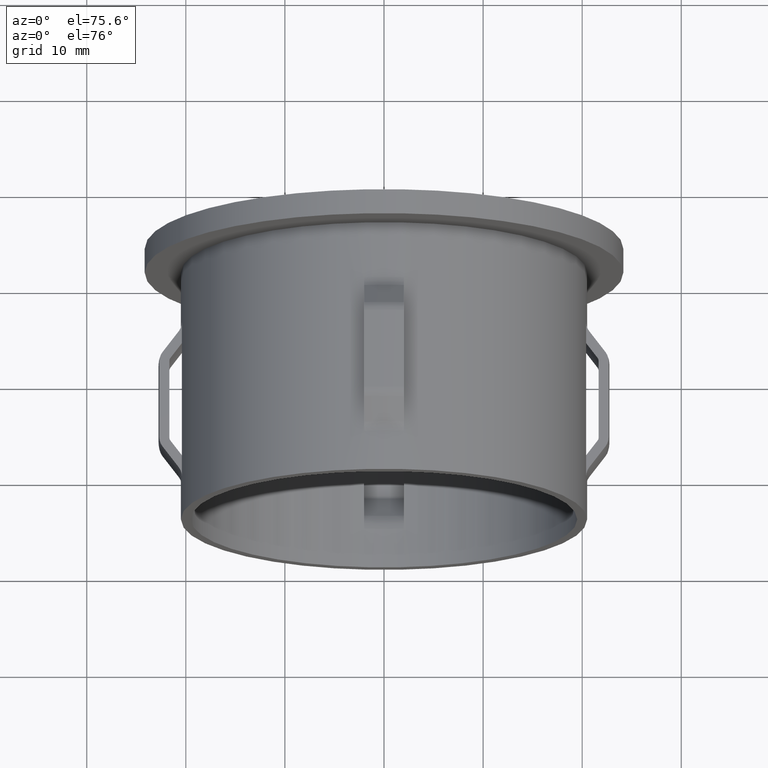
[diagram: clean part render]
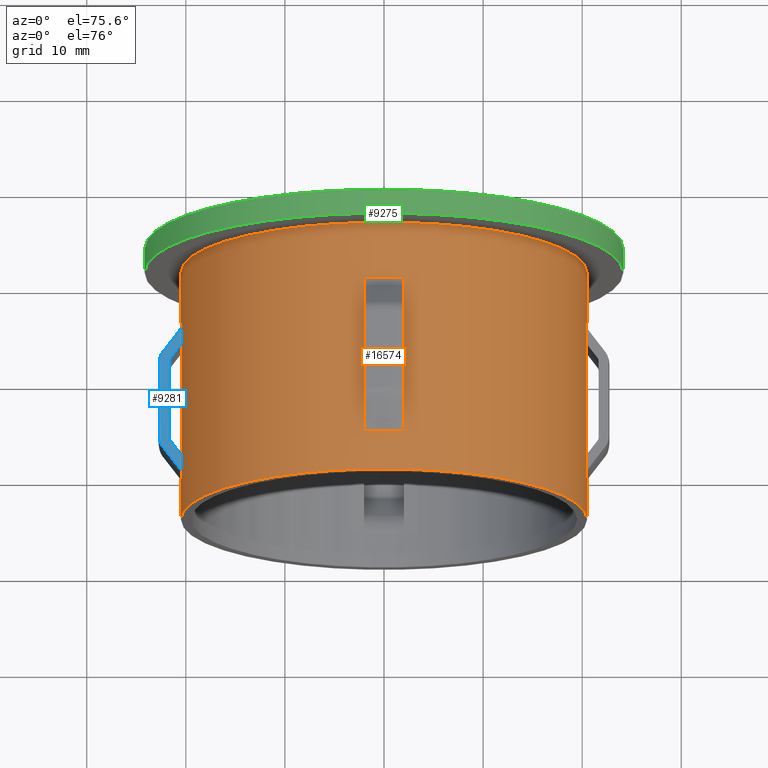
[diagram: same view with three faces highlighted in distinct colors, each labeled with its STEP entity id]
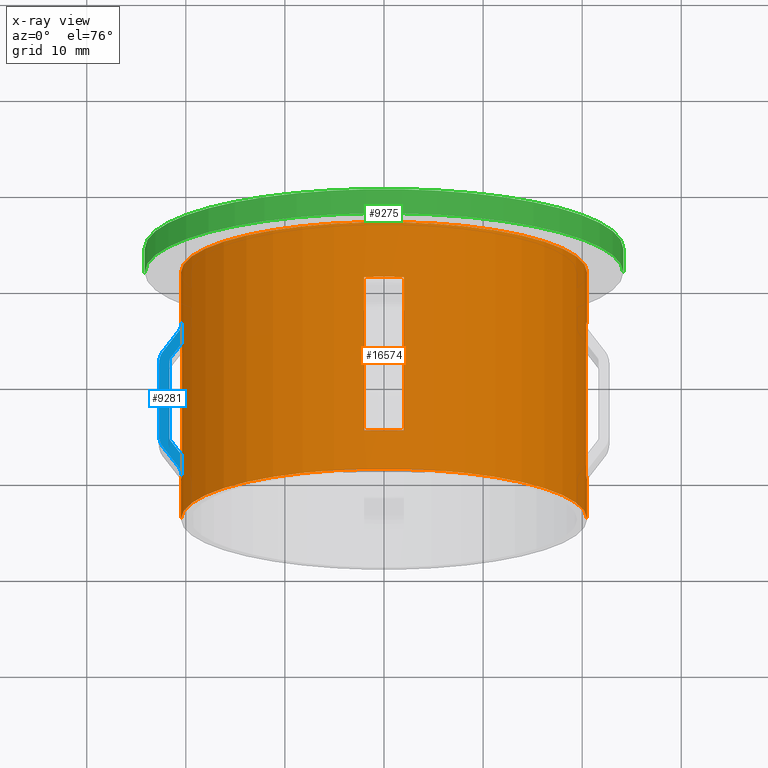
[diagram: x-ray of the same camera — body ghosted, the three highlighted faces saturated]
A machine part, auxiliary view with three faces highlighted in distinct colors.
The next image is the same camera in x-ray (body ghosted, the three faces saturated) — at least one of them is partly hidden behind the body in this view.
Their STEP definitions:

[orange] entity #16574 — the highlighted cylindrical surface (partial cylindrical patch) has radius 20.5 mm, axis along (-0, 1, -0).
#146 = DIRECTION ( 'NONE',  ( -0.0000000000000000000, -1.000000000000000000, -0.0000000000000000000 ) ) ;
#223 = DIRECTION ( 'NONE',  ( -1.714505518806297100E-016, 1.000000000000000000, -0.0000000000000000000 ) ) ;
#460 = VERTEX_POINT ( 'NONE', #12580 ) ;
#514 = VERTEX_POINT ( 'NONE', #8737 ) ;
#531 = VERTEX_POINT ( 'NONE', #11409 ) ;
#661 = CARTESIAN_POINT ( 'NONE',  ( 20.40220576310317200, 3.999999999999989800, 2.000000000000000000 ) ) ;
#669 = LINE ( 'NONE', #8160, #2994 ) ;
#673 = EDGE_CURVE ( 'NONE', #1411, #10798, #3997, .T. ) ;
#711 = ORIENTED_EDGE ( 'NONE', *, *, #13304, .F. ) ;
#755 = EDGE_CURVE ( 'NONE', #460, #5099, #16939, .T. ) ;
#776 = CARTESIAN_POINT ( 'NONE',  ( 4.589976203204287100E-015, -3.469446951953614200E-015, 0.0000000000000000000 ) ) ;
#844 = DIRECTION ( 'NONE',  ( -1.000000000000000000, -1.692413147294446000E-016, 0.0000000000000000000 ) ) ;
#855 = DIRECTION ( 'NONE',  ( -1.714505518806297100E-016, 1.000000000000000000, -0.0000000000000000000 ) ) ;
#1033 = ORIENTED_EDGE ( 'NONE', *, *, #2920, .F. ) ;
#1125 = ORIENTED_EDGE ( 'NONE', *, *, #5379, .T. ) ;
#1150 = EDGE_CURVE ( 'NONE', #531, #5264, #2097, .T. ) ;
#1158 = ORIENTED_EDGE ( 'NONE', *, *, #11167, .T. ) ;
#1393 = CARTESIAN_POINT ( 'NONE',  ( 2.000000000000004900, 51.72464896776082800, 20.40220576310316900 ) ) ;
#1411 = VERTEX_POINT ( 'NONE', #9732 ) ;
#1485 = EDGE_CURVE ( 'NONE', #15719, #4306, #17335, .T. ) ;
#1512 = VECTOR ( 'NONE', #2829, 1000.000000000000000 ) ;
#1540 = VECTOR ( 'NONE', #15731, 1000.000000000000000 ) ;
#1913 = VERTEX_POINT ( 'NONE', #5503 ) ;
#1917 = ORIENTED_EDGE ( 'NONE', *, *, #7832, .F. ) ;
#2070 = CARTESIAN_POINT ( 'NONE',  ( 3.904173995681768100E-015, 3.999999999999996400, 0.0000000000000000000 ) ) ;
#2097 = LINE ( 'NONE', #15490, #10245 ) ;
#2134 = AXIS2_PLACEMENT_3D ( 'NONE', #2070, #4706, #7378 ) ;
#2150 = ORIENTED_EDGE ( 'NONE', *, *, #11316, .F. ) ;
#2278 = CIRCLE ( 'NONE', #8524, 20.50000000000000000 ) ;
#2418 = FACE_BOUND ( 'NONE', #2493, .T. ) ;
#2493 = EDGE_LOOP ( 'NONE', ( #10840, #13848, #1917, #711, #3559, #11485, #1125, #5761 ) ) ;
#2568 = LINE ( 'NONE', #4601, #5693 ) ;
#2607 = CIRCLE ( 'NONE', #8800, 20.50000000000000700 ) ;
#2673 = ORIENTED_EDGE ( 'NONE', *, *, #3501, .T. ) ;
#2803 = DIRECTION ( 'NONE',  ( -1.000000000000000000, -1.692413147294446000E-016, 0.0000000000000000000 ) ) ;
#2811 = CARTESIAN_POINT ( 'NONE',  ( -20.40220576310316500, 20.00000000000000000, 2.000000000000000000 ) ) ;
#2829 = DIRECTION ( 'NONE',  ( 0.0000000000000000000, -1.000000000000000000, 0.0000000000000000000 ) ) ;
#2920 = EDGE_CURVE ( 'NONE', #12529, #15719, #2924, .T. ) ;
#2924 = LINE ( 'NONE', #15937, #13145 ) ;
#2981 = CARTESIAN_POINT ( 'NONE',  ( -20.40220576310316500, 3.999999999999989800, 2.000000000000000000 ) ) ;
#2994 = VECTOR ( 'NONE', #146, 1000.000000000000000 ) ;
#3033 = ORIENTED_EDGE ( 'NONE', *, *, #11952, .F. ) ;
#3077 = DIRECTION ( 'NONE',  ( -1.714505518806297100E-016, 1.000000000000000000, -0.0000000000000000000 ) ) ;
#3208 = CARTESIAN_POINT ( 'NONE',  ( 20.50000000000001400, 4.000000000000000000, 2.510525938252075700E-015 ) ) ;
#3361 = CARTESIAN_POINT ( 'NONE',  ( -20.49999999999999600, 25.69999999999999200, 0.0000000000000000000 ) ) ;
#3444 = DIRECTION ( 'NONE',  ( -1.000000000000000000, -1.692413147294446200E-016, 0.0000000000000000000 ) ) ;
#3501 = EDGE_CURVE ( 'NONE', #12529, #10206, #2278, .T. ) ;
#3502 = DIRECTION ( 'NONE',  ( -1.714505518806297100E-016, 1.000000000000000000, -0.0000000000000000000 ) ) ;
#3559 = ORIENTED_EDGE ( 'NONE', *, *, #11973, .F. ) ;
#3632 = DIRECTION ( 'NONE',  ( -1.714505518806297100E-016, 1.000000000000000000, -0.0000000000000000000 ) ) ;
#3960 = CARTESIAN_POINT ( 'NONE',  ( 20.40220576310316900, 19.99999999999999600, 2.000000000000000400 ) ) ;
#3997 = LINE ( 'NONE', #16430, #13813 ) ;
#4078 = CARTESIAN_POINT ( 'NONE',  ( 2.000000000000004900, 20.00000000000000000, 20.40220576310316900 ) ) ;
#4174 = DIRECTION ( 'NONE',  ( -1.000000000000000000, -1.692413147294445500E-016, 0.0000000000000000000 ) ) ;
#4245 = EDGE_CURVE ( 'NONE', #5099, #1913, #10607, .T. ) ;
#4256 = CARTESIAN_POINT ( 'NONE',  ( 20.50000000000000400, 4.528936159929513800E-017, 2.510525938252074500E-015 ) ) ;
#4306 = VERTEX_POINT ( 'NONE', #2981 ) ;
#4433 = ORIENTED_EDGE ( 'NONE', *, *, #11275, .T. ) ;
#4461 = AXIS2_PLACEMENT_3D ( 'NONE', #5424, #14764, #2803 ) ;
#4543 = DIRECTION ( 'NONE',  ( -0.0000000000000000000, -1.000000000000000000, -0.0000000000000000000 ) ) ;
#4601 = CARTESIAN_POINT ( 'NONE',  ( -20.50000000000000400, 28.19999999999999600, 0.0000000000000000000 ) ) ;
#4706 = DIRECTION ( 'NONE',  ( -1.714505518806297100E-016, 1.000000000000000000, -0.0000000000000000000 ) ) ;
#4733 = VECTOR ( 'NONE', #16099, 1000.000000000000000 ) ;
#4957 = ORIENTED_EDGE ( 'NONE', *, *, #1485, .F. ) ;
#5099 = VERTEX_POINT ( 'NONE', #12471 ) ;
#5193 = VECTOR ( 'NONE', #10621, 1000.000000000000000 ) ;
#5264 = VERTEX_POINT ( 'NONE', #661 ) ;
#5379 = EDGE_CURVE ( 'NONE', #11331, #7179, #16224, .T. ) ;
#5405 = EDGE_LOOP ( 'NONE', ( #2673, #17163, #15188, #11676, #3033, #7712, #4433, #6901, #6967, #2150, #9232, #14720, #1158, #6989, #4957, #1033 ) ) ;
#5424 = CARTESIAN_POINT ( 'NONE',  ( 1.160965165591693700E-015, 19.99999999999999300, 0.0000000000000000000 ) ) ;
#5503 = CARTESIAN_POINT ( 'NONE',  ( -20.40220576310316500, 17.83333333333333600, 2.000000000000000000 ) ) ;
#5569 = LINE ( 'NONE', #9154, #10981 ) ;
#5693 = VECTOR ( 'NONE', #8445, 1000.000000000000000 ) ;
#5761 = ORIENTED_EDGE ( 'NONE', *, *, #16009, .T. ) ;
#5889 = CARTESIAN_POINT ( 'NONE',  ( 20.40220576310317200, 17.83333333333333900, 2.000000000000000000 ) ) ;
#5942 = VECTOR ( 'NONE', #10613, 1000.000000000000000 ) ;
#5988 = CARTESIAN_POINT ( 'NONE',  ( 3.904173995681768100E-015, 3.999999999999996400, 0.0000000000000000000 ) ) ;
#6247 = DIRECTION ( 'NONE',  ( -1.714505518806297100E-016, 1.000000000000000000, -0.0000000000000000000 ) ) ;
#6384 = CARTESIAN_POINT ( 'NONE',  ( -20.40220576310316500, 20.00000000000000000, 2.000000000000000000 ) ) ;
#6728 = LINE ( 'NONE', #11937, #10092 ) ;
#6752 = CARTESIAN_POINT ( 'NONE',  ( 2.000000000000004900, 20.00000000000000000, 20.40220576310316900 ) ) ;
#6901 = ORIENTED_EDGE ( 'NONE', *, *, #673, .T. ) ;
#6934 = AXIS2_PLACEMENT_3D ( 'NONE', #7597, #9114, #17051 ) ;
#6967 = ORIENTED_EDGE ( 'NONE', *, *, #15082, .F. ) ;
#6989 = ORIENTED_EDGE ( 'NONE', *, *, #9626, .T. ) ;
#6996 = CYLINDRICAL_SURFACE ( 'NONE', #9784, 20.50000000000000400 ) ;
#7043 = CARTESIAN_POINT ( 'NONE',  ( -1.999999999999996700, 19.99999999999999300, 20.40220576310316900 ) ) ;
#7179 = VERTEX_POINT ( 'NONE', #14443 ) ;
#7203 = VERTEX_POINT ( 'NONE', #16010 ) ;
#7229 = VERTEX_POINT ( 'NONE', #17345 ) ;
#7348 = LINE ( 'NONE', #12136, #1512 ) ;
#7378 = DIRECTION ( 'NONE',  ( -1.000000000000000000, -1.692413147294445500E-016, 0.0000000000000000000 ) ) ;
#7521 = DIRECTION ( 'NONE',  ( -1.000000000000000000, -1.692413147294445500E-016, 0.0000000000000000000 ) ) ;
#7597 = CARTESIAN_POINT ( 'NONE',  ( 1.160965165591693700E-015, 19.99999999999999300, 0.0000000000000000000 ) ) ;
#7680 = VERTEX_POINT ( 'NONE', #3208 ) ;
#7712 = ORIENTED_EDGE ( 'NONE', *, *, #11197, .F. ) ;
#7773 = VECTOR ( 'NONE', #16108, 1000.000000000000000 ) ;
#7832 = EDGE_CURVE ( 'NONE', #7203, #14005, #15175, .T. ) ;
#7971 = VECTOR ( 'NONE', #17343, 1000.000000000000000 ) ;
#8160 = CARTESIAN_POINT ( 'NONE',  ( 20.40220576310317200, 20.00000000000000000, 2.000000000000000000 ) ) ;
#8445 = DIRECTION ( 'NONE',  ( -1.714505518806297100E-016, 1.000000000000000000, -0.0000000000000000000 ) ) ;
#8524 = AXIS2_PLACEMENT_3D ( 'NONE', #776, #10077, #15499 ) ;
#8598 = DIRECTION ( 'NONE',  ( -0.0000000000000000000, -1.000000000000000000, -0.0000000000000000000 ) ) ;
#8671 = LINE ( 'NONE', #6752, #5942 ) ;
#8737 = CARTESIAN_POINT ( 'NONE',  ( 2.000000000000004900, 17.83333333333333600, 20.40220576310316900 ) ) ;
#8800 = AXIS2_PLACEMENT_3D ( 'NONE', #5988, #855, #7521 ) ;
#9062 = LINE ( 'NONE', #6384, #1540 ) ;
#9084 = VERTEX_POINT ( 'NONE', #12419 ) ;
#9114 = DIRECTION ( 'NONE',  ( -1.714505518806297100E-016, 1.000000000000000000, -0.0000000000000000000 ) ) ;
#9154 = CARTESIAN_POINT ( 'NONE',  ( -1.999999999999996200, 20.00000000000000000, 20.40220576310316500 ) ) ;
#9180 = EDGE_CURVE ( 'NONE', #5264, #7680, #2607, .T. ) ;
#9225 = DIRECTION ( 'NONE',  ( -1.000000000000000000, -1.692413147294445700E-016, 0.0000000000000000000 ) ) ;
#9232 = ORIENTED_EDGE ( 'NONE', *, *, #755, .T. ) ;
#9351 = DIRECTION ( 'NONE',  ( -1.714505518806297100E-016, 1.000000000000000000, -0.0000000000000000000 ) ) ;
#9479 = VERTEX_POINT ( 'NONE', #12159 ) ;
#9626 = EDGE_CURVE ( 'NONE', #9084, #4306, #9062, .T. ) ;
#9732 = CARTESIAN_POINT ( 'NONE',  ( 20.50000000000000000, 19.99999999999999600, 2.510525938252074500E-015 ) ) ;
#9771 = LINE ( 'NONE', #12467, #16871 ) ;
#9784 = AXIS2_PLACEMENT_3D ( 'NONE', #15537, #6247, #9225 ) ;
#10077 = DIRECTION ( 'NONE',  ( -1.714505518806297100E-016, 1.000000000000000000, -0.0000000000000000000 ) ) ;
#10092 = VECTOR ( 'NONE', #13178, 1000.000000000000000 ) ;
#10157 = LINE ( 'NONE', #4078, #4733 ) ;
#10206 = VERTEX_POINT ( 'NONE', #4256 ) ;
#10245 = VECTOR ( 'NONE', #8598, 1000.000000000000000 ) ;
#10292 = CIRCLE ( 'NONE', #4461, 20.50000000000000000 ) ;
#10607 = LINE ( 'NONE', #2811, #5193 ) ;
#10613 = DIRECTION ( 'NONE',  ( -0.0000000000000000000, -1.000000000000000000, -0.0000000000000000000 ) ) ;
#10621 = DIRECTION ( 'NONE',  ( -0.0000000000000000000, -1.000000000000000000, -0.0000000000000000000 ) ) ;
#10635 = CARTESIAN_POINT ( 'NONE',  ( -1.999999999999996200, 51.72464896776082800, 20.40220576310316500 ) ) ;
#10798 = VERTEX_POINT ( 'NONE', #16472 ) ;
#10840 = ORIENTED_EDGE ( 'NONE', *, *, #12361, .T. ) ;
#10971 = CARTESIAN_POINT ( 'NONE',  ( 3.904173995681768100E-015, 3.999999999999996400, 0.0000000000000000000 ) ) ;
#10981 = VECTOR ( 'NONE', #11006, 1000.000000000000000 ) ;
#11006 = DIRECTION ( 'NONE',  ( -0.0000000000000000000, -1.000000000000000000, -0.0000000000000000000 ) ) ;
#11167 = EDGE_CURVE ( 'NONE', #1913, #9084, #6728, .T. ) ;
#11197 = EDGE_CURVE ( 'NONE', #17235, #13885, #669, .T. ) ;
#11275 = EDGE_CURVE ( 'NONE', #17235, #1411, #10292, .T. ) ;
#11316 = EDGE_CURVE ( 'NONE', #460, #12557, #2568, .T. ) ;
#11331 = VERTEX_POINT ( 'NONE', #7043 ) ;
#11409 = CARTESIAN_POINT ( 'NONE',  ( 20.40220576310317200, 6.166666666666667900, 2.000000000000000000 ) ) ;
#11485 = ORIENTED_EDGE ( 'NONE', *, *, #13409, .F. ) ;
#11514 = LINE ( 'NONE', #10635, #7971 ) ;
#11619 = CIRCLE ( 'NONE', #16907, 20.49999999999999600 ) ;
#11676 = ORIENTED_EDGE ( 'NONE', *, *, #1150, .F. ) ;
#11937 = CARTESIAN_POINT ( 'NONE',  ( -20.40220576310316500, 51.72464896776082800, 2.000000000000000000 ) ) ;
#11952 = EDGE_CURVE ( 'NONE', #13885, #531, #7348, .T. ) ;
#11973 = EDGE_CURVE ( 'NONE', #7229, #14617, #11514, .T. ) ;
#11994 = FACE_OUTER_BOUND ( 'NONE', #5405, .T. ) ;
#12049 = VECTOR ( 'NONE', #12211, 1000.000000000000000 ) ;
#12136 = CARTESIAN_POINT ( 'NONE',  ( 20.40220576310317200, 51.72464896776082800, 2.000000000000000000 ) ) ;
#12159 = CARTESIAN_POINT ( 'NONE',  ( 2.000000000000004900, 6.166666666666667900, 20.40220576310316900 ) ) ;
#12211 = DIRECTION ( 'NONE',  ( -1.714505518806297100E-016, 1.000000000000000000, -0.0000000000000000000 ) ) ;
#12361 = EDGE_CURVE ( 'NONE', #514, #9479, #14886, .T. ) ;
#12419 = CARTESIAN_POINT ( 'NONE',  ( -20.40220576310316500, 6.166666666666661600, 2.000000000000000000 ) ) ;
#12467 = CARTESIAN_POINT ( 'NONE',  ( -1.999999999999996200, 20.00000000000000000, 20.40220576310316500 ) ) ;
#12471 = CARTESIAN_POINT ( 'NONE',  ( -20.40220576310316500, 20.00000000000000000, 2.000000000000000000 ) ) ;
#12504 = CARTESIAN_POINT ( 'NONE',  ( -20.49999999999999600, -6.984183265506524500E-015, 0.0000000000000000000 ) ) ;
#12529 = VERTEX_POINT ( 'NONE', #12504 ) ;
#12557 = VERTEX_POINT ( 'NONE', #3361 ) ;
#12580 = CARTESIAN_POINT ( 'NONE',  ( -20.50000000000000000, 19.99999999999998900, 0.0000000000000000000 ) ) ;
#12805 = AXIS2_PLACEMENT_3D ( 'NONE', #10971, #223, #4174 ) ;
#12910 = CARTESIAN_POINT ( 'NONE',  ( 2.000000000000004900, 3.999999999999989800, 20.40220576310316900 ) ) ;
#13145 = VECTOR ( 'NONE', #9351, 1000.000000000000000 ) ;
#13178 = DIRECTION ( 'NONE',  ( 0.0000000000000000000, -1.000000000000000000, 0.0000000000000000000 ) ) ;
#13304 = EDGE_CURVE ( 'NONE', #14617, #7203, #5569, .T. ) ;
#13409 = EDGE_CURVE ( 'NONE', #11331, #7229, #9771, .T. ) ;
#13637 = CARTESIAN_POINT ( 'NONE',  ( -1.999999999999996200, 6.166666666666660700, 20.40220576310316500 ) ) ;
#13813 = VECTOR ( 'NONE', #3077, 1000.000000000000000 ) ;
#13828 = EDGE_CURVE ( 'NONE', #10206, #7680, #15616, .T. ) ;
#13848 = ORIENTED_EDGE ( 'NONE', *, *, #16867, .T. ) ;
#13885 = VERTEX_POINT ( 'NONE', #5889 ) ;
#14005 = VERTEX_POINT ( 'NONE', #12910 ) ;
#14181 = CARTESIAN_POINT ( 'NONE',  ( 1.160965165591693700E-015, 19.99999999999999300, 0.0000000000000000000 ) ) ;
#14443 = CARTESIAN_POINT ( 'NONE',  ( 2.000000000000004900, 20.00000000000000000, 20.40220576310316900 ) ) ;
#14617 = VERTEX_POINT ( 'NONE', #13637 ) ;
#14720 = ORIENTED_EDGE ( 'NONE', *, *, #4245, .T. ) ;
#14764 = DIRECTION ( 'NONE',  ( -1.714505518806297100E-016, 1.000000000000000000, -0.0000000000000000000 ) ) ;
#14860 = CARTESIAN_POINT ( 'NONE',  ( 20.50000000000000400, 28.20000000000000300, 2.510525938252074500E-015 ) ) ;
#14886 = LINE ( 'NONE', #1393, #7773 ) ;
#15082 = EDGE_CURVE ( 'NONE', #12557, #10798, #11619, .T. ) ;
#15175 = CIRCLE ( 'NONE', #12805, 20.50000000000000700 ) ;
#15188 = ORIENTED_EDGE ( 'NONE', *, *, #9180, .F. ) ;
#15490 = CARTESIAN_POINT ( 'NONE',  ( 20.40220576310317200, 20.00000000000000000, 2.000000000000000000 ) ) ;
#15499 = DIRECTION ( 'NONE',  ( -1.000000000000000000, -1.714505518806297600E-016, 0.0000000000000000000 ) ) ;
#15537 = CARTESIAN_POINT ( 'NONE',  ( -2.449293598294708900E-016, 28.19999999999999900, 0.0000000000000000000 ) ) ;
#15616 = LINE ( 'NONE', #14860, #12049 ) ;
#15719 = VERTEX_POINT ( 'NONE', #16516 ) ;
#15731 = DIRECTION ( 'NONE',  ( -0.0000000000000000000, -1.000000000000000000, -0.0000000000000000000 ) ) ;
#15937 = CARTESIAN_POINT ( 'NONE',  ( -20.50000000000000400, 28.19999999999999600, 0.0000000000000000000 ) ) ;
#16009 = EDGE_CURVE ( 'NONE', #7179, #514, #10157, .T. ) ;
#16010 = CARTESIAN_POINT ( 'NONE',  ( -1.999999999999996200, 3.999999999999989800, 20.40220576310316500 ) ) ;
#16099 = DIRECTION ( 'NONE',  ( -0.0000000000000000000, -1.000000000000000000, -0.0000000000000000000 ) ) ;
#16108 = DIRECTION ( 'NONE',  ( 0.0000000000000000000, -1.000000000000000000, 0.0000000000000000000 ) ) ;
#16224 = CIRCLE ( 'NONE', #17040, 20.50000000000000000 ) ;
#16430 = CARTESIAN_POINT ( 'NONE',  ( 20.50000000000000400, 28.20000000000000300, 2.510525938252074500E-015 ) ) ;
#16472 = CARTESIAN_POINT ( 'NONE',  ( 20.49999999999999600, 25.69999999999999900, 2.510525938252074500E-015 ) ) ;
#16516 = CARTESIAN_POINT ( 'NONE',  ( -20.50000000000000400, 3.999999999999993300, 0.0000000000000000000 ) ) ;
#16574 = ADVANCED_FACE ( 'NONE', ( #2418, #11994 ), #6996, .T. ) ;
#16799 = CARTESIAN_POINT ( 'NONE',  ( 1.836970198721037800E-016, 25.69999999999999600, 0.0000000000000000000 ) ) ;
#16867 = EDGE_CURVE ( 'NONE', #9479, #14005, #8671, .T. ) ;
#16871 = VECTOR ( 'NONE', #4543, 1000.000000000000000 ) ;
#16907 = AXIS2_PLACEMENT_3D ( 'NONE', #16799, #3632, #3444 ) ;
#16939 = CIRCLE ( 'NONE', #6934, 20.50000000000000000 ) ;
#17040 = AXIS2_PLACEMENT_3D ( 'NONE', #14181, #3502, #844 ) ;
#17051 = DIRECTION ( 'NONE',  ( -1.000000000000000000, -1.692413147294446000E-016, 0.0000000000000000000 ) ) ;
#17163 = ORIENTED_EDGE ( 'NONE', *, *, #13828, .T. ) ;
#17235 = VERTEX_POINT ( 'NONE', #3960 ) ;
#17335 = CIRCLE ( 'NONE', #2134, 20.50000000000000700 ) ;
#17343 = DIRECTION ( 'NONE',  ( 0.0000000000000000000, -1.000000000000000000, 0.0000000000000000000 ) ) ;
#17345 = CARTESIAN_POINT ( 'NONE',  ( -1.999999999999996200, 17.83333333333333900, 20.40220576310316500 ) ) ;

[blue] entity #9281 — the highlighted planar face has unit normal (0, 0, -1).
#4 = B_SPLINE_CURVE_WITH_KNOTS ( 'NONE', 3,
 ( #11467, #2015, #15907, #9441, #11874, #4951 ),
 .UNSPECIFIED., .F., .F.,
 ( 4, 2, 4 ),
 ( 0.002964423728254266700, 0.003124331397023054800, 0.003284239065791842900 ),
 .UNSPECIFIED. ) ;
#348 = ORIENTED_EDGE ( 'NONE', *, *, #654, .F. ) ;
#467 = CARTESIAN_POINT ( 'NONE',  ( -20.40220576310314700, 19.83936915238787400, 2.000000000000000000 ) ) ;
#498 = CARTESIAN_POINT ( 'NONE',  ( -22.66191739460718300, 15.99999999999999300, 2.000000000000000000 ) ) ;
#654 = EDGE_CURVE ( 'NONE', #7715, #5099, #11375, .T. ) ;
#937 = CARTESIAN_POINT ( 'NONE',  ( -21.34585242861320300, 16.58087638457387000, 2.000000000000000000 ) ) ;
#953 = EDGE_CURVE ( 'NONE', #9106, #14808, #9426, .T. ) ;
#1055 = ORIENTED_EDGE ( 'NONE', *, *, #8675, .F. ) ;
#1062 = CARTESIAN_POINT ( 'NONE',  ( -20.70362287137205800, 4.899999999999988800, 2.000000000000000000 ) ) ;
#1295 = CARTESIAN_POINT ( 'NONE',  ( -22.05864386723998300, 6.698812466233844600, 2.000000000000000000 ) ) ;
#1540 = VECTOR ( 'NONE', #15731, 1000.000000000000000 ) ;
#1740 = B_SPLINE_CURVE_WITH_KNOTS ( 'NONE', 3,
 ( #1062, #17118, #5108, #3993, #9124, #1295, #15946 ),
 .UNSPECIFIED., .F., .F.,
 ( 4, 3, 4 ),
 ( 0.004246087564673653300, 0.005493742981669977300, 0.007000361000274047400 ),
 .UNSPECIFIED. ) ;
#1788 = EDGE_LOOP ( 'NONE', ( #10503, #11487, #2464, #12436, #5893, #10308, #6205, #3532, #14793, #11079, #9744, #1055, #9066, #348 ) ) ;
#1827 = CARTESIAN_POINT ( 'NONE',  ( -21.64926511843252400, 16.10665781212129800, 2.000000000000000000 ) ) ;
#1913 = VERTEX_POINT ( 'NONE', #5503 ) ;
#1994 = CARTESIAN_POINT ( 'NONE',  ( -21.65785077056354500, 15.99999999999980600, 2.000000000000000000 ) ) ;
#2015 = CARTESIAN_POINT ( 'NONE',  ( -21.65785077056355600, 7.946662022509723800, 2.000000000000000000 ) ) ;
#2202 = VERTEX_POINT ( 'NONE', #4884 ) ;
#2241 = EDGE_CURVE ( 'NONE', #12411, #14808, #5711, .T. ) ;
#2275 = CARTESIAN_POINT ( 'NONE',  ( -20.52826029769647000, 6.333941285484212500, 2.000000000000000000 ) ) ;
#2464 = ORIENTED_EDGE ( 'NONE', *, *, #953, .T. ) ;
#2811 = CARTESIAN_POINT ( 'NONE',  ( -20.40220576310316500, 20.00000000000000000, 2.000000000000000000 ) ) ;
#2931 = B_SPLINE_CURVE_WITH_KNOTS ( 'NONE', 3,
 ( #15789, #8896, #10248, #3662, #6316, #7672 ),
 .UNSPECIFIED., .F., .F.,
 ( 4, 2, 4 ),
 ( 0.009279241710638893800, 0.009759658690249261400, 0.01024007566985962700 ),
 .UNSPECIFIED. ) ;
#2981 = CARTESIAN_POINT ( 'NONE',  ( -20.40220576310316500, 3.999999999999989800, 2.000000000000000000 ) ) ;
#3187 = CARTESIAN_POINT ( 'NONE',  ( -20.70362287137206200, 19.09999999999999100, 2.000000000000000000 ) ) ;
#3188 = CARTESIAN_POINT ( 'NONE',  ( -22.36073567662746000, 7.099999999999991700, 2.000000000000000000 ) ) ;
#3532 = ORIENTED_EDGE ( 'NONE', *, *, #9158, .F. ) ;
#3549 = CARTESIAN_POINT ( 'NONE',  ( -22.45723750218049400, 7.228157494491609800, 2.000000000000000000 ) ) ;
#3609 = CARTESIAN_POINT ( 'NONE',  ( -22.63607172904884700, 7.679753066958683800, 2.000000000000000000 ) ) ;
#3631 = DIRECTION ( 'NONE',  ( 0.0000000000000000000, 0.0000000000000000000, -1.000000000000000000 ) ) ;
#3649 = CARTESIAN_POINT ( 'NONE',  ( -21.03134390878812700, 16.99839244633291100, 2.000000000000000000 ) ) ;
#3662 = CARTESIAN_POINT ( 'NONE',  ( -20.53069086360118300, 4.626924771380496200, 2.000000000000000000 ) ) ;
#3741 = DIRECTION ( 'NONE',  ( -1.000000000000000000, 0.0000000000000000000, -0.0000000000000000000 ) ) ;
#3993 = CARTESIAN_POINT ( 'NONE',  ( -21.45436331679245600, 5.896510393787136400, 2.000000000000000000 ) ) ;
#4245 = EDGE_CURVE ( 'NONE', #5099, #1913, #10607, .T. ) ;
#4267 = DIRECTION ( 'NONE',  ( 1.714505518806297100E-016, -1.000000000000000000, 0.0000000000000000000 ) ) ;
#4306 = VERTEX_POINT ( 'NONE', #2981 ) ;
#4395 = CARTESIAN_POINT ( 'NONE',  ( -22.63576449502781100, 16.32191643122676800, 2.000000000000000000 ) ) ;
#4477 = CARTESIAN_POINT ( 'NONE',  ( -22.16826365679139600, 17.15560015973014900, 2.000000000000000000 ) ) ;
#4637 = B_SPLINE_CURVE_WITH_KNOTS ( 'NONE', 3,
 ( #15129, #11203, #4395, #12490, #5771, #9642 ),
 .UNSPECIFIED., .F., .F.,
 ( 4, 2, 4 ),
 ( 0.008872696262132396700, 0.009352479114629563100, 0.009832261967126731300 ),
 .UNSPECIFIED. ) ;
#4884 = CARTESIAN_POINT ( 'NONE',  ( -22.36073567662746300, 16.89999999999999500, 2.000000000000000000 ) ) ;
#4951 = CARTESIAN_POINT ( 'NONE',  ( -21.55742331541504000, 7.699999999999992200, 2.000000000000000000 ) ) ;
#5099 = VERTEX_POINT ( 'NONE', #12471 ) ;
#5108 = CARTESIAN_POINT ( 'NONE',  ( -21.20414143193702100, 5.564321482277375000, 2.000000000000000000 ) ) ;
#5123 = VERTEX_POINT ( 'NONE', #11068 ) ;
#5190 = CARTESIAN_POINT ( 'NONE',  ( 0.0000000000000000000, 20.00000000000000000, 2.000000000000000000 ) ) ;
#5193 = VECTOR ( 'NONE', #10621, 1000.000000000000000 ) ;
#5262 = B_SPLINE_CURVE_WITH_KNOTS ( 'NONE', 3,
 ( #8199, #7188, #10006, #1827, #15264, #1994 ),
 .UNSPECIFIED., .F., .F.,
 ( 4, 2, 4 ),
 ( 0.002982968478880304200, 0.003142785955063275400, 0.003302603431246246100 ),
 .UNSPECIFIED. ) ;
#5503 = CARTESIAN_POINT ( 'NONE',  ( -20.40220576310316500, 17.83333333333333600, 2.000000000000000000 ) ) ;
#5600 = B_SPLINE_CURVE_WITH_KNOTS ( 'NONE', 3,
 ( #16268, #8333, #8389, #4477, #5696, #15052, #13646 ),
 .UNSPECIFIED., .F., .F.,
 ( 4, 3, 4 ),
 ( 0.005173778839012771100, 0.005493742765755321400, 0.007928052407990229800 ),
 .UNSPECIFIED. ) ;
#5696 = CARTESIAN_POINT ( 'NONE',  ( -21.68013897667759700, 17.80380040649287900, 2.000000000000000000 ) ) ;
#5711 = B_SPLINE_CURVE_WITH_KNOTS ( 'NONE', 3,
 ( #11512, #3549, #14392, #3609, #6201, #7730 ),
 .UNSPECIFIED., .F., .F.,
 ( 4, 2, 4 ),
 ( 0.008969584436048862900, 0.009448924133632626700, 0.009928263831216388800 ),
 .UNSPECIFIED. ) ;
#5760 = LINE ( 'NONE', #14887, #12865 ) ;
#5771 = CARTESIAN_POINT ( 'NONE',  ( -22.45764683650945800, 16.77129889649671300, 2.000000000000000000 ) ) ;
#5893 = ORIENTED_EDGE ( 'NONE', *, *, #7117, .F. ) ;
#6050 = CARTESIAN_POINT ( 'NONE',  ( -20.59128495384231900, 6.417580562514550600, 2.000000000000000000 ) ) ;
#6201 = CARTESIAN_POINT ( 'NONE',  ( -22.66191739460719400, 7.838389142377813800, 2.000000000000000000 ) ) ;
#6205 = ORIENTED_EDGE ( 'NONE', *, *, #9626, .F. ) ;
#6316 = CARTESIAN_POINT ( 'NONE',  ( -20.60707801550468700, 4.771869981663516400, 2.000000000000000000 ) ) ;
#6339 = B_SPLINE_CURVE_WITH_KNOTS ( 'NONE', 3,
 ( #8998, #9052, #3649, #937, #11781, #15712, #17047 ),
 .UNSPECIFIED., .F., .F.,
 ( 4, 3, 4 ),
 ( 0.003404639482274210300, 0.004972796773933229800, 0.005324441154595962000 ),
 .UNSPECIFIED. ) ;
#6384 = CARTESIAN_POINT ( 'NONE',  ( -20.40220576310316500, 20.00000000000000000, 2.000000000000000000 ) ) ;
#7022 = CARTESIAN_POINT ( 'NONE',  ( -20.42849904654646300, 19.67803846206351900, 2.000000000000000000 ) ) ;
#7066 = CARTESIAN_POINT ( 'NONE',  ( -21.65785077056354200, 7.999999999999992900, 2.000000000000000000 ) ) ;
#7117 = EDGE_CURVE ( 'NONE', #9730, #12411, #1740, .T. ) ;
#7188 = CARTESIAN_POINT ( 'NONE',  ( -21.58956664926878200, 16.25732548393202500, 2.000000000000000000 ) ) ;
#7189 = CARTESIAN_POINT ( 'NONE',  ( -20.60631600501986300, 19.22914132459940700, 2.000000000000000000 ) ) ;
#7623 = EDGE_CURVE ( 'NONE', #5123, #12048, #5760, .T. ) ;
#7642 = PLANE ( 'NONE',  #10589 ) ;
#7672 = CARTESIAN_POINT ( 'NONE',  ( -20.70362287137205800, 4.899999999999988800, 2.000000000000000000 ) ) ;
#7715 = VERTEX_POINT ( 'NONE', #12476 ) ;
#7720 = CARTESIAN_POINT ( 'NONE',  ( -22.66191739460718300, 7.999999999999994700, 2.000000000000000000 ) ) ;
#7730 = CARTESIAN_POINT ( 'NONE',  ( -22.66191739460718300, 7.999999999999994700, 2.000000000000000000 ) ) ;
#7772 = VERTEX_POINT ( 'NONE', #11298 ) ;
#8061 = DIRECTION ( 'NONE',  ( -0.0000000000000000000, -1.000000000000000000, -0.0000000000000000000 ) ) ;
#8199 = CARTESIAN_POINT ( 'NONE',  ( -21.55742331541503600, 16.29999999999999000, 2.000000000000000000 ) ) ;
#8333 = CARTESIAN_POINT ( 'NONE',  ( -22.29657974719771500, 16.98520111537147400, 2.000000000000000000 ) ) ;
#8389 = CARTESIAN_POINT ( 'NONE',  ( -22.23242241944546600, 17.07040117783342500, 2.000000000000000000 ) ) ;
#8478 = B_SPLINE_CURVE_WITH_KNOTS ( 'NONE', 3,
 ( #11478, #11596, #15463, #6050, #2275, #15576, #16745 ),
 .UNSPECIFIED., .F., .F.,
 ( 4, 3, 4 ),
 ( 0.003367174421853518800, 0.004972796687409687100, 0.005286976121812324600 ),
 .UNSPECIFIED. ) ;
#8659 = FACE_OUTER_BOUND ( 'NONE', #1788, .T. ) ;
#8675 = EDGE_CURVE ( 'NONE', #1913, #7772, #6339, .T. ) ;
#8896 = CARTESIAN_POINT ( 'NONE',  ( -20.40220576310316900, 4.161604340151745500, 2.000000000000000000 ) ) ;
#8998 = CARTESIAN_POINT ( 'NONE',  ( -20.40220576310316500, 17.83333333333333600, 2.000000000000000000 ) ) ;
#9052 = CARTESIAN_POINT ( 'NONE',  ( -20.71679687798203800, 17.41587950198355700, 2.000000000000000000 ) ) ;
#9062 = LINE ( 'NONE', #6384, #1540 ) ;
#9066 = ORIENTED_EDGE ( 'NONE', *, *, #4245, .F. ) ;
#9084 = VERTEX_POINT ( 'NONE', #12419 ) ;
#9106 = VERTEX_POINT ( 'NONE', #498 ) ;
#9124 = CARTESIAN_POINT ( 'NONE',  ( -21.75652110604748700, 6.297648236605376800, 2.000000000000000000 ) ) ;
#9158 = EDGE_CURVE ( 'NONE', #14386, #9084, #8478, .T. ) ;
#9281 = ADVANCED_FACE ( 'NONE', ( #8659 ), #7642, .F. ) ;
#9426 = LINE ( 'NONE', #10565, #11913 ) ;
#9441 = CARTESIAN_POINT ( 'NONE',  ( -21.61478098976090200, 7.790335616721211700, 2.000000000000000000 ) ) ;
#9626 = EDGE_CURVE ( 'NONE', #9084, #4306, #9062, .T. ) ;
#9642 = CARTESIAN_POINT ( 'NONE',  ( -22.36073567662746300, 16.89999999999999500, 2.000000000000000000 ) ) ;
#9730 = VERTEX_POINT ( 'NONE', #14803 ) ;
#9744 = ORIENTED_EDGE ( 'NONE', *, *, #13867, .F. ) ;
#9832 = CARTESIAN_POINT ( 'NONE',  ( -20.40220576310316500, 20.00000000000000000, 2.000000000000000000 ) ) ;
#10006 = CARTESIAN_POINT ( 'NONE',  ( -21.61514054676551700, 16.20885382416867100, 2.000000000000000000 ) ) ;
#10190 = EDGE_CURVE ( 'NONE', #2202, #7715, #5600, .T. ) ;
#10248 = CARTESIAN_POINT ( 'NONE',  ( -20.42862710607806800, 4.322418688410208700, 2.000000000000000000 ) ) ;
#10308 = ORIENTED_EDGE ( 'NONE', *, *, #15659, .F. ) ;
#10503 = ORIENTED_EDGE ( 'NONE', *, *, #10190, .F. ) ;
#10565 = CARTESIAN_POINT ( 'NONE',  ( -22.66191739460718300, 20.00000000000000000, 2.000000000000000000 ) ) ;
#10589 = AXIS2_PLACEMENT_3D ( 'NONE', #5190, #3631, #3741 ) ;
#10607 = LINE ( 'NONE', #2811, #5193 ) ;
#10621 = DIRECTION ( 'NONE',  ( -0.0000000000000000000, -1.000000000000000000, -0.0000000000000000000 ) ) ;
#10742 = EDGE_CURVE ( 'NONE', #9106, #2202, #4637, .T. ) ;
#11068 = CARTESIAN_POINT ( 'NONE',  ( -21.65785077056354500, 15.99999999999980600, 2.000000000000000000 ) ) ;
#11079 = ORIENTED_EDGE ( 'NONE', *, *, #7623, .F. ) ;
#11203 = CARTESIAN_POINT ( 'NONE',  ( -22.66191739460719000, 16.15997073065860000, 2.000000000000000000 ) ) ;
#11298 = CARTESIAN_POINT ( 'NONE',  ( -21.55742331541503600, 16.29999999999999000, 2.000000000000000000 ) ) ;
#11375 = B_SPLINE_CURVE_WITH_KNOTS ( 'NONE', 3,
 ( #3187, #7189, #16537, #7022, #467, #9832 ),
 .UNSPECIFIED., .F., .F.,
 ( 4, 2, 4 ),
 ( 0.009303738421694024100, 0.009784268192446037000, 0.01026479796319804800 ),
 .UNSPECIFIED. ) ;
#11467 = CARTESIAN_POINT ( 'NONE',  ( -21.65785077056354200, 7.999999999999992900, 2.000000000000000000 ) ) ;
#11478 = CARTESIAN_POINT ( 'NONE',  ( -21.55742331541504000, 7.699999999999992200, 2.000000000000000000 ) ) ;
#11487 = ORIENTED_EDGE ( 'NONE', *, *, #10742, .F. ) ;
#11512 = CARTESIAN_POINT ( 'NONE',  ( -22.36073567662746000, 7.099999999999991700, 2.000000000000000000 ) ) ;
#11531 = EDGE_CURVE ( 'NONE', #12048, #14386, #4, .T. ) ;
#11596 = CARTESIAN_POINT ( 'NONE',  ( -21.23541831297500000, 7.272495880075050300, 2.000000000000000000 ) ) ;
#11781 = CARTESIAN_POINT ( 'NONE',  ( -21.41637797909297400, 16.48725237048967800, 2.000000000000000000 ) ) ;
#11874 = CARTESIAN_POINT ( 'NONE',  ( -21.58978677122853500, 7.742966757008222300, 2.000000000000000000 ) ) ;
#11913 = VECTOR ( 'NONE', #8061, 1000.000000000000000 ) ;
#12048 = VERTEX_POINT ( 'NONE', #7066 ) ;
#12411 = VERTEX_POINT ( 'NONE', #3188 ) ;
#12419 = CARTESIAN_POINT ( 'NONE',  ( -20.40220576310316500, 6.166666666666661600, 2.000000000000000000 ) ) ;
#12436 = ORIENTED_EDGE ( 'NONE', *, *, #2241, .F. ) ;
#12471 = CARTESIAN_POINT ( 'NONE',  ( -20.40220576310316500, 20.00000000000000000, 2.000000000000000000 ) ) ;
#12476 = CARTESIAN_POINT ( 'NONE',  ( -20.70362287137206200, 19.09999999999999100, 2.000000000000000000 ) ) ;
#12490 = CARTESIAN_POINT ( 'NONE',  ( -22.53287645610295100, 16.62868712496407000, 2.000000000000000000 ) ) ;
#12865 = VECTOR ( 'NONE', #4267, 1000.000000000000000 ) ;
#13646 = CARTESIAN_POINT ( 'NONE',  ( -20.70362287137206200, 19.09999999999999100, 2.000000000000000000 ) ) ;
#13867 = EDGE_CURVE ( 'NONE', #7772, #5123, #5262, .T. ) ;
#14386 = VERTEX_POINT ( 'NONE', #14571 ) ;
#14392 = CARTESIAN_POINT ( 'NONE',  ( -22.53396991080786500, 7.373829909824792100, 2.000000000000000000 ) ) ;
#14571 = CARTESIAN_POINT ( 'NONE',  ( -21.55742331541504000, 7.699999999999992200, 2.000000000000000000 ) ) ;
#14793 = ORIENTED_EDGE ( 'NONE', *, *, #11531, .F. ) ;
#14803 = CARTESIAN_POINT ( 'NONE',  ( -20.70362287137205800, 4.899999999999988800, 2.000000000000000000 ) ) ;
#14808 = VERTEX_POINT ( 'NONE', #7720 ) ;
#14887 = CARTESIAN_POINT ( 'NONE',  ( -21.65785077056354500, 28.19999999999999600, 2.000000000000000000 ) ) ;
#15052 = CARTESIAN_POINT ( 'NONE',  ( -21.19193164112334300, 18.45193842219780900, 2.000000000000000000 ) ) ;
#15129 = CARTESIAN_POINT ( 'NONE',  ( -22.66191739460718300, 15.99999999999999300, 2.000000000000000000 ) ) ;
#15264 = CARTESIAN_POINT ( 'NONE',  ( -21.65785077056356300, 16.05400046832902200, 2.000000000000000000 ) ) ;
#15463 = CARTESIAN_POINT ( 'NONE',  ( -20.91337411212600400, 6.845021281521664700, 2.000000000000000000 ) ) ;
#15576 = CARTESIAN_POINT ( 'NONE',  ( -20.46523391683308200, 6.250303308049835100, 2.000000000000000000 ) ) ;
#15659 = EDGE_CURVE ( 'NONE', #4306, #9730, #2931, .T. ) ;
#15712 = CARTESIAN_POINT ( 'NONE',  ( -21.48690158925611400, 16.39362689476468300, 2.000000000000000000 ) ) ;
#15731 = DIRECTION ( 'NONE',  ( -0.0000000000000000000, -1.000000000000000000, -0.0000000000000000000 ) ) ;
#15789 = CARTESIAN_POINT ( 'NONE',  ( -20.40220576310316500, 3.999999999999989800, 2.000000000000000000 ) ) ;
#15907 = CARTESIAN_POINT ( 'NONE',  ( -21.64913376969328600, 7.892686372440354400, 2.000000000000000000 ) ) ;
#15946 = CARTESIAN_POINT ( 'NONE',  ( -22.36073567662746000, 7.099999999999991700, 2.000000000000000000 ) ) ;
#16268 = CARTESIAN_POINT ( 'NONE',  ( -22.36073567662746300, 16.89999999999999500, 2.000000000000000000 ) ) ;
#16537 = CARTESIAN_POINT ( 'NONE',  ( -20.53067805272776900, 19.37303846685356800, 2.000000000000000000 ) ) ;
#16745 = CARTESIAN_POINT ( 'NONE',  ( -20.40220576310316500, 6.166666666666661600, 2.000000000000000000 ) ) ;
#17047 = CARTESIAN_POINT ( 'NONE',  ( -21.55742331541503600, 16.29999999999999000, 2.000000000000000000 ) ) ;
#17118 = CARTESIAN_POINT ( 'NONE',  ( -20.95389551634072600, 5.232150670285380800, 2.000000000000000000 ) ) ;

[green] entity #9275 — the highlighted cylindrical surface (partial cylindrical patch) has radius 24.15 mm, axis along (-0, 1, -0).
#1009 = ORIENTED_EDGE ( 'NONE', *, *, #13391, .T. ) ;
#1207 = DIRECTION ( 'NONE',  ( -1.714505518806297100E-016, 1.000000000000000000, -0.0000000000000000000 ) ) ;
#1791 = VECTOR ( 'NONE', #11696, 1000.000000000000000 ) ;
#1958 = DIRECTION ( 'NONE',  ( -1.714505518806297100E-016, 1.000000000000000000, -0.0000000000000000000 ) ) ;
#1978 = CYLINDRICAL_SURFACE ( 'NONE', #12038, 24.14999999999999900 ) ;
#5284 = ORIENTED_EDGE ( 'NONE', *, *, #13056, .F. ) ;
#5343 = LINE ( 'NONE', #13047, #1791 ) ;
#5935 = VERTEX_POINT ( 'NONE', #9261 ) ;
#5990 = ORIENTED_EDGE ( 'NONE', *, *, #12630, .T. ) ;
#6534 = DIRECTION ( 'NONE',  ( -1.714505518806297100E-016, 1.000000000000000000, -0.0000000000000000000 ) ) ;
#6711 = CIRCLE ( 'NONE', #10396, 24.14999999999999900 ) ;
#7273 = AXIS2_PLACEMENT_3D ( 'NONE', #9294, #6534, #7941 ) ;
#7941 = DIRECTION ( 'NONE',  ( -1.000000000000000000, -1.436623996668163300E-016, 0.0000000000000000000 ) ) ;
#8168 = ORIENTED_EDGE ( 'NONE', *, *, #16198, .F. ) ;
#8179 = VERTEX_POINT ( 'NONE', #13656 ) ;
#8334 = CARTESIAN_POINT ( 'NONE',  ( -24.14999999999999900, 28.19999999999999200, 0.0000000000000000000 ) ) ;
#8444 = CARTESIAN_POINT ( 'NONE',  ( 24.14999999999999900, 28.20000000000000300, 2.957522019940857900E-015 ) ) ;
#9115 = EDGE_LOOP ( 'NONE', ( #5990, #1009, #5284, #8168 ) ) ;
#9235 = CARTESIAN_POINT ( 'NONE',  ( -24.14999999999999900, 25.69999999999999200, 0.0000000000000000000 ) ) ;
#9261 = CARTESIAN_POINT ( 'NONE',  ( 24.14999999999999900, 28.19999999999999900, 2.957522019940857900E-015 ) ) ;
#9275 = ADVANCED_FACE ( 'NONE', ( #14939 ), #1978, .T. ) ;
#9294 = CARTESIAN_POINT ( 'NONE',  ( 1.836970198721039300E-016, 25.69999999999999600, 0.0000000000000000000 ) ) ;
#9445 = CIRCLE ( 'NONE', #7273, 24.14999999999999900 ) ;
#10396 = AXIS2_PLACEMENT_3D ( 'NONE', #11543, #11715, #10451 ) ;
#10451 = DIRECTION ( 'NONE',  ( -1.000000000000000000, -1.436623996668163300E-016, 0.0000000000000000000 ) ) ;
#11543 = CARTESIAN_POINT ( 'NONE',  ( -2.449293598294701500E-016, 28.19999999999999600, 0.0000000000000000000 ) ) ;
#11696 = DIRECTION ( 'NONE',  ( -1.714505518806297100E-016, 1.000000000000000000, -0.0000000000000000000 ) ) ;
#11715 = DIRECTION ( 'NONE',  ( -1.714505518806297100E-016, 1.000000000000000000, -0.0000000000000000000 ) ) ;
#12038 = AXIS2_PLACEMENT_3D ( 'NONE', #17187, #1207, #17025 ) ;
#12505 = LINE ( 'NONE', #8444, #13991 ) ;
#12630 = EDGE_CURVE ( 'NONE', #14041, #8179, #9445, .T. ) ;
#13047 = CARTESIAN_POINT ( 'NONE',  ( -24.14999999999999900, 28.19999999999999600, 0.0000000000000000000 ) ) ;
#13056 = EDGE_CURVE ( 'NONE', #16018, #5935, #6711, .T. ) ;
#13391 = EDGE_CURVE ( 'NONE', #8179, #5935, #12505, .T. ) ;
#13656 = CARTESIAN_POINT ( 'NONE',  ( 24.14999999999999900, 25.69999999999999900, 2.957522019940857900E-015 ) ) ;
#13991 = VECTOR ( 'NONE', #1958, 1000.000000000000000 ) ;
#14041 = VERTEX_POINT ( 'NONE', #9235 ) ;
#14939 = FACE_OUTER_BOUND ( 'NONE', #9115, .T. ) ;
#16018 = VERTEX_POINT ( 'NONE', #8334 ) ;
#16198 = EDGE_CURVE ( 'NONE', #14041, #16018, #5343, .T. ) ;
#17025 = DIRECTION ( 'NONE',  ( -1.000000000000000000, -1.436623996668163300E-016, 0.0000000000000000000 ) ) ;
#17187 = CARTESIAN_POINT ( 'NONE',  ( -2.449293598294708900E-016, 28.19999999999999900, 0.0000000000000000000 ) ) ;